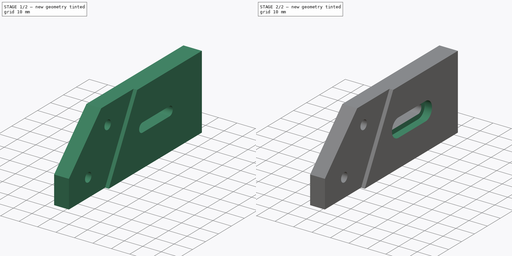
[diagram: build sequence overview — one tinted view per stage of 2, left to right]
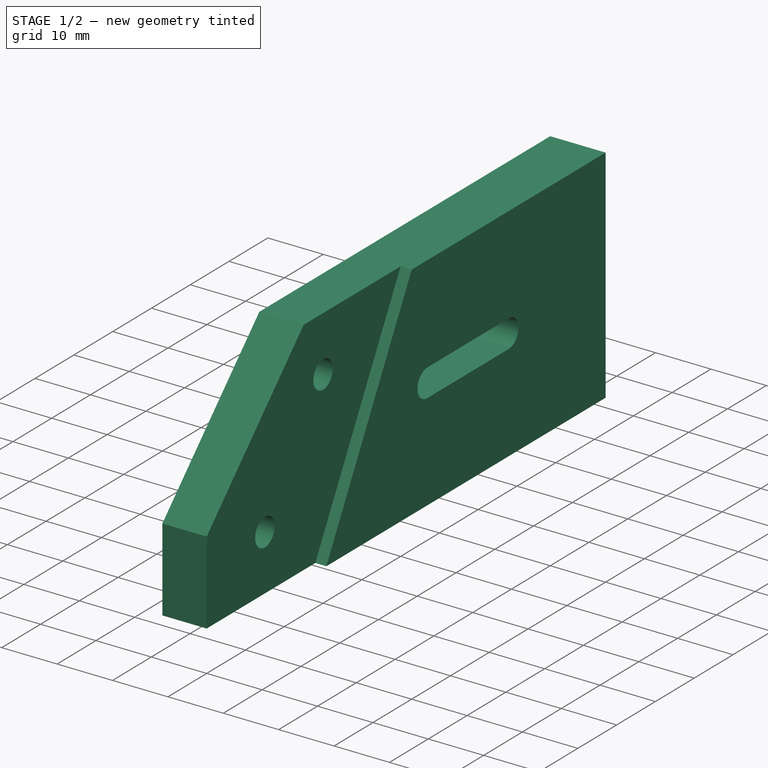
[diagram: stage 1 of 2 — iso view after this stage's code; geometry added in this stage tinted green]
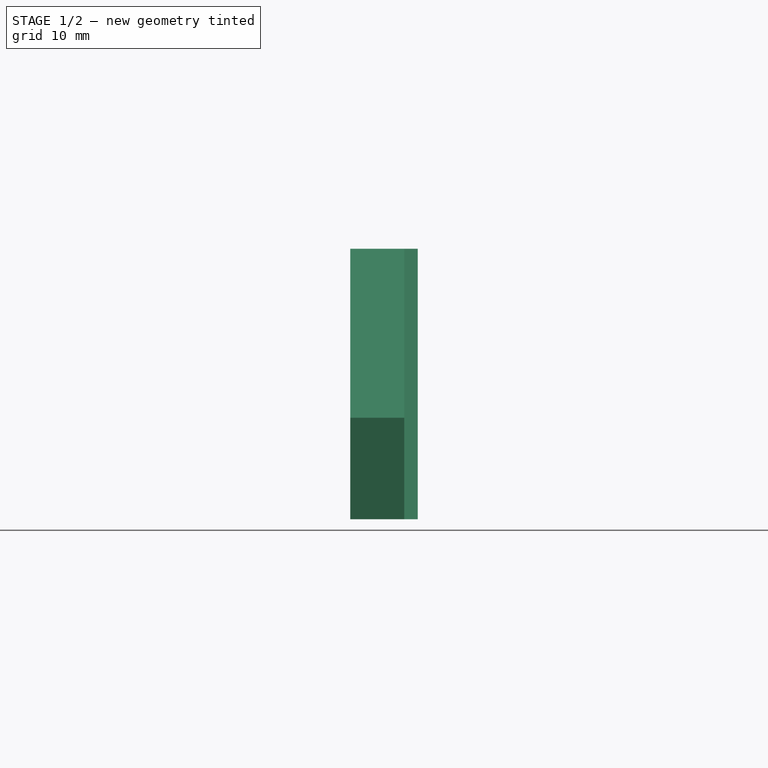
[diagram: stage 1 of 2 — front view after this stage's code; geometry added in this stage tinted green]
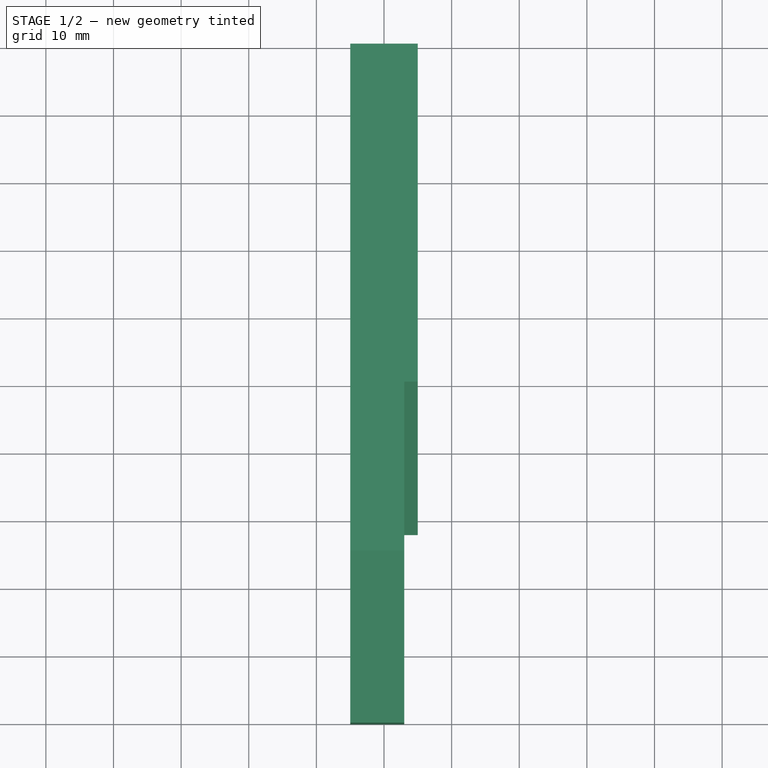
[diagram: stage 1 of 2 — top view after this stage's code; geometry added in this stage tinted green]
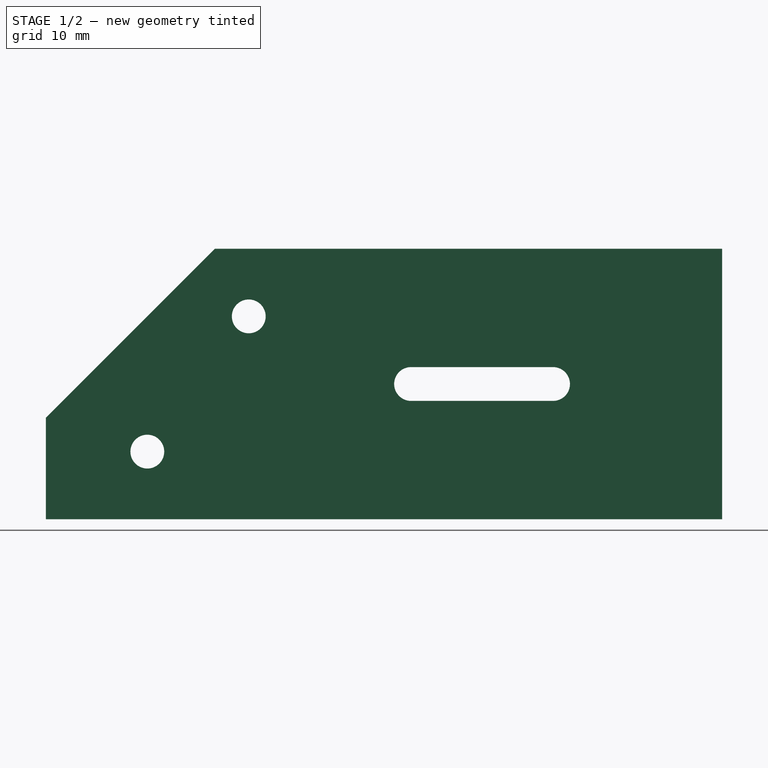
[diagram: stage 1 of 2 — right view after this stage's code; geometry added in this stage tinted green]
FCSTD DOCUMENT  (FreeCAD 0.18R16146 (Git))
Label: LeftMirrorMount
License: All rights reserved
LicenseURL: http://en.wikipedia.org/wiki/All_rights_reserved
objects: Sketcher::SketchObject×4, PartDesign::Pocket×2, PartDesign::Pad×1, PartDesign::Plane×1, PartDesign::Body×1
note: 12 computed .brp shape members not serialized (recipe doc carries the construction recipe); baked Part::Feature solids carry a one-line shape summary decoded from their .brp

FEATURE [Sketcher::SketchObject] Sketch  label="Master"
  MapMode = 5
  Placement = pos=(0,0,0) rot=(0.57735,0.57735,0.57735;2.0944rad)
  Support = -> [YZ_Plane]
  sketch-geometry (24):
    g0: LineSegment StartX=-25 StartY=20 StartZ=0 EndX=-50 EndY=-5 EndZ=0
    g1: LineSegment StartX=-50 StartY=-5 StartZ=0 EndX=-50 EndY=-20 EndZ=0
    g2: LineSegment StartX=-50 StartY=-20 StartZ=0 EndX=50 EndY=-20 EndZ=0
    g3: LineSegment StartX=50 StartY=-20 StartZ=0 EndX=50 EndY=20 EndZ=0
    g4: LineSegment StartX=50 StartY=20 StartZ=0 EndX=-25 EndY=20 EndZ=0
    g5: Circle CenterX=-35 CenterY=-10 CenterZ=0 NormalX=0 NormalY=0 NormalZ=1 AngleXU=0 Radius=2.5
    g6: Circle CenterX=-20 CenterY=10 CenterZ=0 NormalX=0 NormalY=0 NormalZ=1 AngleXU=0 Radius=2.5
    g7: LineSegment StartX=83.1533 StartY=5.68012 StartZ=0 EndX=83.1533 EndY=-4.31988 EndZ=0
    g8: LineSegment StartX=4 StartY=2.5 StartZ=0 EndX=25 EndY=2.5 EndZ=0
    g9: LineSegment StartX=4 StartY=-2.5 StartZ=0 EndX=25 EndY=-2.5 EndZ=0
    g10: ArcOfCircle CenterX=25 CenterY=-1e-16 CenterZ=0 NormalX=0 NormalY=0 NormalZ=1 AngleXU=0 Radius=2.5 StartAngle=4.71239 EndAngle=7.85398
    g11: ArcOfCircle CenterX=4 CenterY=0 CenterZ=0 NormalX=0 NormalY=0 NormalZ=1 AngleXU=0 Radius=2.5 StartAngle=1.5708 EndAngle=4.71239
    g12: LineSegment [constr] StartX=1.5 StartY=2.5 StartZ=0 EndX=27.5 EndY=2.5 EndZ=0
    g13: LineSegment [constr] StartX=27.5 StartY=2.5 StartZ=0 EndX=27.5 EndY=-2.5 EndZ=0
    g14: LineSegment [constr] StartX=27.5 StartY=-2.5 StartZ=0 EndX=1.5 EndY=-2.5 EndZ=0
    g15: LineSegment [constr] StartX=1.5 StartY=-2.5 StartZ=0 EndX=1.5 EndY=2.5 EndZ=0
    g16: LineSegment StartX=4 StartY=5 StartZ=0 EndX=25 EndY=5 EndZ=0
    g17: LineSegment StartX=4 StartY=-5 StartZ=0 EndX=25 EndY=-5 EndZ=0
    g18: ArcOfCircle CenterX=25 CenterY=-1e-16 CenterZ=0 NormalX=0 NormalY=0 NormalZ=1 AngleXU=0 Radius=5 StartAngle=4.71239 EndAngle=7.85398
    g19: ArcOfCircle CenterX=4 CenterY=0 CenterZ=0 NormalX=0 NormalY=0 NormalZ=1 AngleXU=0 Radius=5 StartAngle=1.5708 EndAngle=4.71239
    g20: LineSegment [constr] StartX=-1 StartY=5 StartZ=0 EndX=30 EndY=5 EndZ=0
    g21: LineSegment [constr] StartX=30 StartY=5 StartZ=0 EndX=30 EndY=-5 EndZ=0
    g22: LineSegment [constr] StartX=30 StartY=-5 StartZ=0 EndX=-1 EndY=-5 EndZ=0
    g23: LineSegment [constr] StartX=-1 StartY=-5 StartZ=0 EndX=-1 EndY=5 EndZ=0
  constraints (71):
    c: Coincident(g0,g1)
    c: Vertical(g1)
    c: Coincident(g1,g2)
    c: Coincident(g2,g3)
    c: Coincident(g3,g4)
    c: Horizontal(g4)
    c: Coincident(g4,g0)
    c: Symmetric(g3,g2,g-1)
    c: Symmetric(g1,g2,g-2)
    c: Angle(g1,g0) = 2.35619
    c: DistanceY(g3,g3) = 40
    c: DistanceX(g2,g2) = 100
    c: DistanceY(g1,g1) = 15
    c: DistanceX(g1,g5) = 15
    c: Diameter(g5) = 5
    c: DistanceY(g1,g5) = 10
    c: Equal(g6,g5)
    c: DistanceY(g6,g0) = 10
    c: DistanceX(g0,g6) = 5
    c: Vertical(g7)
    c: DistanceY(g7,g7) = 10  'Width'
    c: Horizontal(g8)
    c: Horizontal(g9)
    c: Coincident(g10,g8)
    c: Coincident(g9,g10)
    c: Vertical(g10,g8)
    c: Vertical(g8,g9)
    c: Coincident(g11,g8)
    c: Coincident(g11,g9)
    c: Equal(g9,g8)
    c: Vertical(g11,g8)
    c: Coincident(g12,g13)
    c: Coincident(g13,g14)
    c: Coincident(g14,g15)
    c: Coincident(g15,g12)
    c: Horizontal(g12)
    c: Horizontal(g14)
    c: Vertical(g13)
    c: Vertical(g15)
    c: Tangent(g15,g11)
    c: Tangent(g10,g13)
    c: PointOnObject(g8,g12)
    c: PointOnObject(g9,g14)
    c: DistanceY(g15,g15) = 5
    c: DistanceX(g14,g13) = 26
    c: Horizontal(g16)
    c: Horizontal(g17)
    c: Coincident(g18,g16)
    c: Coincident(g18,g17)
    c: Vertical(g17,g10)
    c: Coincident(g19,g16)
    c: Coincident(g19,g17)
    c: Vertical(g17,g11)
    c: Vertical(g11,g16)
    c: Coincident(g19,g11)
    c: Coincident(g18,g10)
    c: Coincident(g20,g21)
    c: Coincident(g21,g22)
    c: Coincident(g22,g23)
    c: Coincident(g23,g20)
    c: Horizontal(g20)
    c: Horizontal(g22)
    c: Vertical(g21)
    c: Vertical(g23)
    c: PointOnObject(g16,g20)
    c: PointOnObject(g17,g22)
    c: Tangent(g23,g19)
    c: Tangent(g18,g21)
    c: DistanceY(g21,g21) = 10
    c: PointOnObject(g11,g-1)
    c: DistanceX(g21,g2) = 20
FEATURE [Sketcher::SketchObject] Sketch001
  MapMode = 5
  Placement = pos=(0,0,0) rot=(0.57735,0.57735,0.57735;2.0944rad)
  Support = -> [YZ_Plane]
  expr: Constraints[17] = Sketch.Constraints[17]
  expr: Constraints[53] = Sketch.Constraints[68]
  expr: Constraints[55] = Sketch.Constraints[70]
  expr: Constraints[43] = Sketch.Constraints[43]
  expr: Constraints[9] = Sketch.Constraints[9]
  expr: Constraints.Width = Sketch.Constraints[20]
  expr: Constraints[14] = Sketch.Constraints[14]
  expr: Constraints[13] = Sketch.Constraints[13]
  expr: Constraints[11] = Sketch.Constraints[11]
  expr: Constraints[18] = Sketch.Constraints[18]
  expr: Constraints[10] = Sketch.Constraints[10]
  expr: Constraints[44] = Sketch.Constraints[44]
  expr: Constraints[15] = Sketch.Constraints[15]
  expr: Constraints[12] = Sketch.Constraints[12]
  sketch-geometry (20):
    g0: LineSegment StartX=-25 StartY=20 StartZ=0 EndX=-50 EndY=-5 EndZ=0
    g1: LineSegment StartX=-50 StartY=-5 StartZ=0 EndX=-50 EndY=-20 EndZ=0
    g2: LineSegment StartX=-50 StartY=-20 StartZ=0 EndX=50 EndY=-20 EndZ=0
    g3: LineSegment StartX=50 StartY=-20 StartZ=0 EndX=50 EndY=20 EndZ=0
    g4: LineSegment StartX=50 StartY=20 StartZ=0 EndX=-25 EndY=20 EndZ=0
    g5: Circle CenterX=-35 CenterY=-10 CenterZ=0 NormalX=0 NormalY=0 NormalZ=1 AngleXU=0 Radius=2.5
    g6: Circle CenterX=-20 CenterY=10 CenterZ=0 NormalX=0 NormalY=0 NormalZ=1 AngleXU=0 Radius=2.5
    g7: LineSegment StartX=83.1533 StartY=5.68012 StartZ=0 EndX=83.1533 EndY=-4.31988 EndZ=0
    g8: LineSegment StartX=4 StartY=2.5 StartZ=0 EndX=25 EndY=2.5 EndZ=0
    g9: LineSegment StartX=4 StartY=-2.5 StartZ=0 EndX=25 EndY=-2.5 EndZ=0
    g10: ArcOfCircle CenterX=25 CenterY=-1e-16 CenterZ=0 NormalX=0 NormalY=0 NormalZ=1 AngleXU=0 Radius=2.5 StartAngle=4.71239 EndAngle=7.85398
    g11: ArcOfCircle CenterX=4 CenterY=0 CenterZ=0 NormalX=0 NormalY=0 NormalZ=1 AngleXU=0 Radius=2.5 StartAngle=1.5708 EndAngle=4.71239
    g12: LineSegment [constr] StartX=1.5 StartY=2.5 StartZ=0 EndX=27.5 EndY=2.5 EndZ=0
    g13: LineSegment [constr] StartX=27.5 StartY=2.5 StartZ=0 EndX=27.5 EndY=-2.5 EndZ=0
    g14: LineSegment [constr] StartX=27.5 StartY=-2.5 StartZ=0 EndX=1.5 EndY=-2.5 EndZ=0
    g15: LineSegment [constr] StartX=1.5 StartY=-2.5 StartZ=0 EndX=1.5 EndY=2.5 EndZ=0
    g16: LineSegment [constr] StartX=-1 StartY=5 StartZ=0 EndX=30 EndY=5 EndZ=0
    g17: LineSegment [constr] StartX=30 StartY=5 StartZ=0 EndX=30 EndY=-5 EndZ=0
    g18: LineSegment [constr] StartX=30 StartY=-5 StartZ=0 EndX=-1 EndY=-5 EndZ=0
    g19: LineSegment [constr] StartX=-1 StartY=-5 StartZ=0 EndX=-1 EndY=5 EndZ=0
  constraints (56):
    c: Coincident(g0,g1)
    c: Vertical(g1)
    c: Coincident(g1,g2)
    c: Coincident(g2,g3)
    c: Coincident(g3,g4)
    c: Horizontal(g4)
    c: Coincident(g4,g0)
    c: Symmetric(g3,g2,g-1)
    c: Symmetric(g1,g2,g-2)
    c: Angle(g1,g0) = 2.35619
    c: DistanceY(g3,g3) = 40
    c: DistanceX(g2,g2) = 100
    c: DistanceY(g1,g1) = 15
    c: DistanceX(g1,g5) = 15
    c: Diameter(g5) = 5
    c: DistanceY(g1,g5) = 10
    c: Equal(g6,g5)
    c: DistanceY(g6,g0) = 10
    c: DistanceX(g0,g6) = 5
    c: Vertical(g7)
    c: DistanceY(g7,g7) = 10  'Width'
    c: Horizontal(g8)
    c: Horizontal(g9)
    c: Coincident(g10,g8)
    c: Coincident(g9,g10)
    c: Vertical(g10,g8)
    c: Vertical(g8,g9)
    c: Coincident(g11,g8)
    c: Coincident(g11,g9)
    c: Equal(g9,g8)
    c: Vertical(g11,g8)
    c: Coincident(g12,g13)
    c: Coincident(g13,g14)
    c: Coincident(g14,g15)
    c: Coincident(g15,g12)
    c: Horizontal(g12)
    c: Horizontal(g14)
    c: Vertical(g13)
    c: Vertical(g15)
    c: Tangent(g15,g11)
    c: Tangent(g10,g13)
    c: PointOnObject(g8,g12)
    c: PointOnObject(g9,g14)
    c: DistanceY(g15,g15) = 5
    c: DistanceX(g14,g13) = 26
    c: Coincident(g16,g17)
    c: Coincident(g17,g18)
    c: Coincident(g18,g19)
    c: Coincident(g19,g16)
    c: Horizontal(g16)
    c: Horizontal(g18)
    c: Vertical(g17)
    c: Vertical(g19)
    c: DistanceY(g17,g17) = 10
    c: PointOnObject(g11,g-1)
    c: DistanceX(g17,g2) = 20
FEATURE [PartDesign::Pad] Pad
  Length = 10
  Length2 = 100
  Midplane = true
  Placement = pos=(0,0,0) rot=(0.57735,0.57735,0.57735;2.0944rad)
  Profile = -> Sketch001
  Type = 0
  expr: Length = Master.Constraints.Width
FEATURE [PartDesign::Plane] DatumPlane
  AttachmentOffset = pos=(0,0,5) rot=(0,0,1;0rad)
  Length = 147.749
  MapMode = 5
  Placement = pos=(5,-1.1e-15,1.1e-15) rot=(0.57735,0.57735,0.57735;2.0944rad)
  ResizeMode = 0
  Support = -> [YZ_Plane]
  Width = 54.5961
  expr: AttachmentOffset.Base.z = Master.Constraints.Width / 2
  expr: AttachmentOffset.Base.x = 0
FEATURE [Sketcher::SketchObject] Sketch002
  ExternalGeometry = -> [Sketch]
  MapMode = 5
  Placement = pos=(5,-1.1e-15,1.1e-15) rot=(0.57735,0.57735,0.57735;2.0944rad)
  Support = -> [DatumPlane]
  sketch-geometry (5):
    g0: LineSegment StartX=-25 StartY=20 StartZ=0 EndX=-50 EndY=-5 EndZ=0
    g1: LineSegment StartX=-50 StartY=-5 StartZ=0 EndX=-50 EndY=-20 EndZ=0
    g2: LineSegment StartX=-50 StartY=-20 StartZ=0 EndX=-22 EndY=-20 EndZ=0
    g3: LineSegment StartX=-22 StartY=-20 StartZ=0 EndX=7.1e-15 EndY=20 EndZ=0
    g4: LineSegment StartX=7.1e-15 StartY=20 StartZ=0 EndX=-25 EndY=20 EndZ=0
  constraints (12):
    c: Coincident(g0,g-5)
    c: Coincident(g0,g1)
    c: Coincident(g1,g-7)
    c: Coincident(g1,g2)
    c: PointOnObject(g2,g-7)
    c: Coincident(g2,g3)
    c: Coincident(g3,g4)
    c: Horizontal(g4)
    c: DistanceX(g3,g-6) = 50
    c: DistanceX(g2,g-7) = 72
    c: Coincident(g4,g0)
    c: Coincident(g0,g-4)
FEATURE [PartDesign::Pocket] Pocket
  BaseFeature = -> Pad
  Length = 2
  Length2 = 100
  Placement = pos=(0,0,0) rot=(0.57735,0.57735,0.57735;2.0944rad)
  Profile = -> Sketch002
  Type = 0
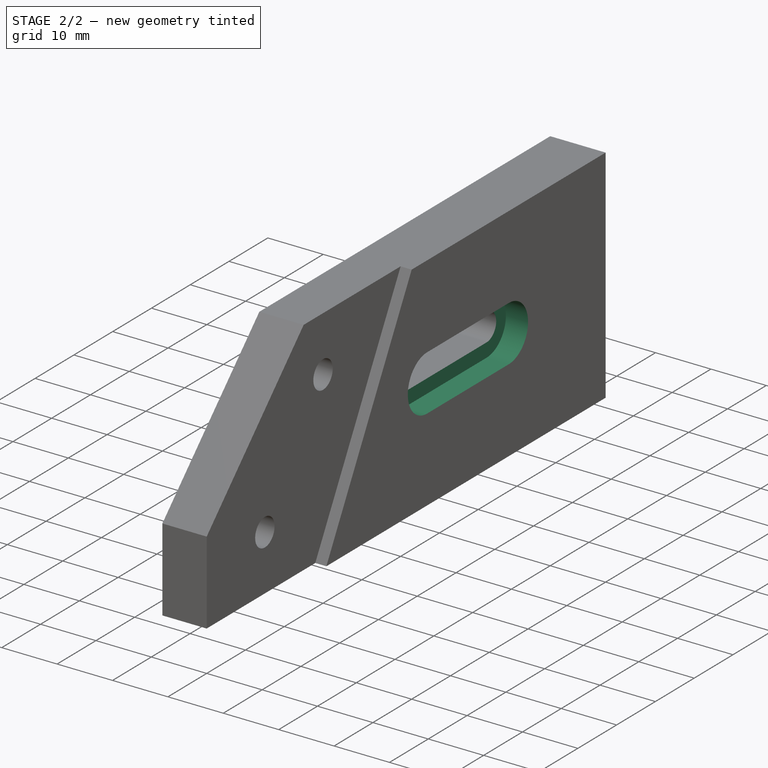
[diagram: stage 2 of 2 — iso view after this stage's code; geometry added in this stage tinted green]
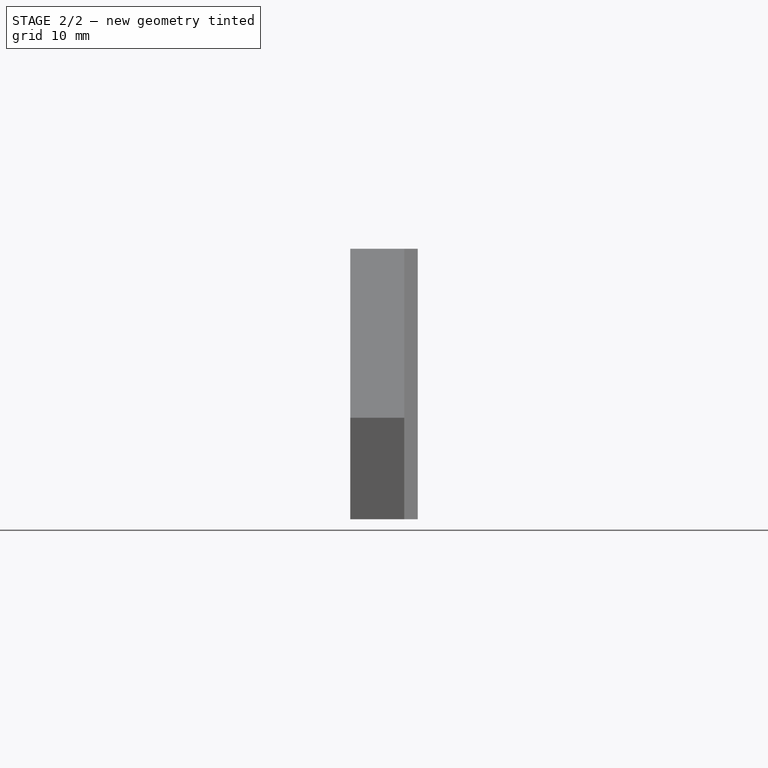
[diagram: stage 2 of 2 — front view after this stage's code; geometry added in this stage tinted green]
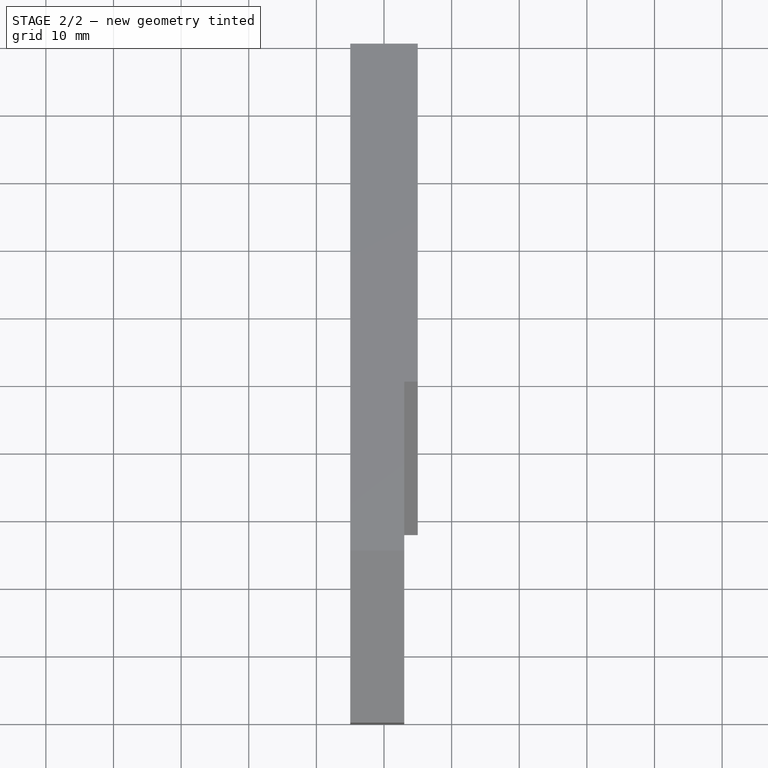
[diagram: stage 2 of 2 — top view after this stage's code; geometry added in this stage tinted green]
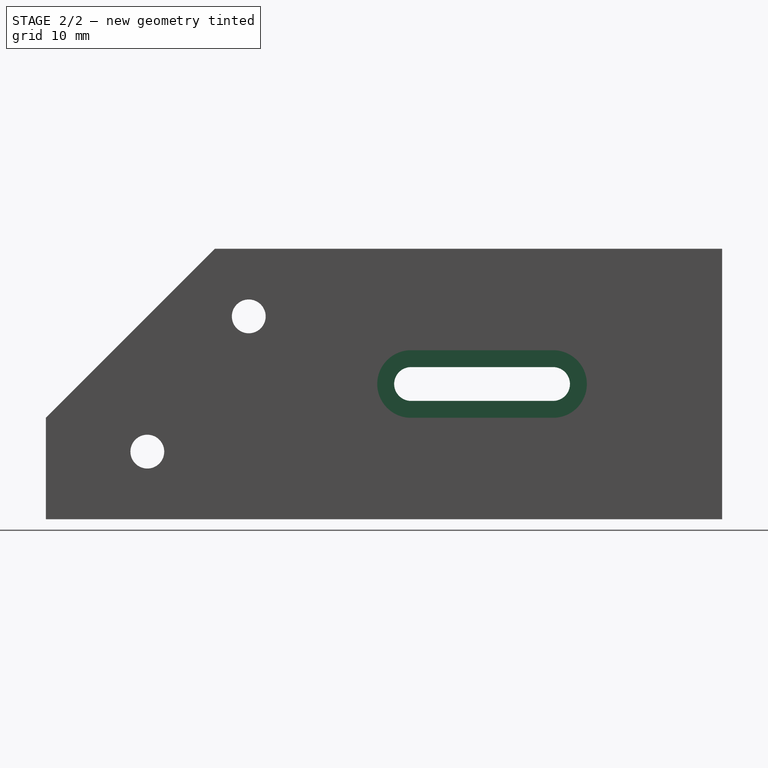
[diagram: stage 2 of 2 — right view after this stage's code; geometry added in this stage tinted green]
FEATURE [Sketcher::SketchObject] Sketch003
  ExternalGeometry = -> [Sketch]
  MapMode = 5
  Placement = pos=(5,-1.1e-15,1.1e-15) rot=(0.57735,0.57735,0.57735;2.0944rad)
  Support = -> [DatumPlane]
  sketch-geometry (4):
    g0: LineSegment StartX=4 StartY=5 StartZ=0 EndX=25 EndY=5 EndZ=0
    g1: LineSegment StartX=4 StartY=-5 StartZ=0 EndX=25 EndY=-5 EndZ=0
    g2: ArcOfCircle CenterX=25 CenterY=-6.2e-15 CenterZ=0 NormalX=0 NormalY=0 NormalZ=1 AngleXU=0 Radius=5 StartAngle=4.71239 EndAngle=7.85398
    g3: ArcOfCircle CenterX=4 CenterY=-1.4e-15 CenterZ=0 NormalX=0 NormalY=0 NormalZ=1 AngleXU=0 Radius=5 StartAngle=1.5708 EndAngle=4.71239
  constraints (10):
    c: Coincident(g0,g-5)
    c: Coincident(g0,g-6)
    c: Coincident(g1,g-5)
    c: Coincident(g1,g-6)
    c: Coincident(g2,g-6)
    c: Coincident(g2,g0)
    c: Coincident(g2,g1)
    c: Coincident(g3,g-5)
    c: Coincident(g3,g0)
    c: Coincident(g3,g1)
FEATURE [PartDesign::Pocket] Pocket001
  BaseFeature = -> Pocket
  Length = 4
  Length2 = 100
  Placement = pos=(0,0,0) rot=(0.57735,0.57735,0.57735;2.0944rad)
  Profile = -> Sketch003
  Type = 0
FEATURE [PartDesign::Body] Body
  Group = -> [Sketch,Sketch001,Pad,DatumPlane,Sketch002,Pocket,Sketch003,Pocket001]
  Origin = -> Origin
  Tip = -> Pocket001
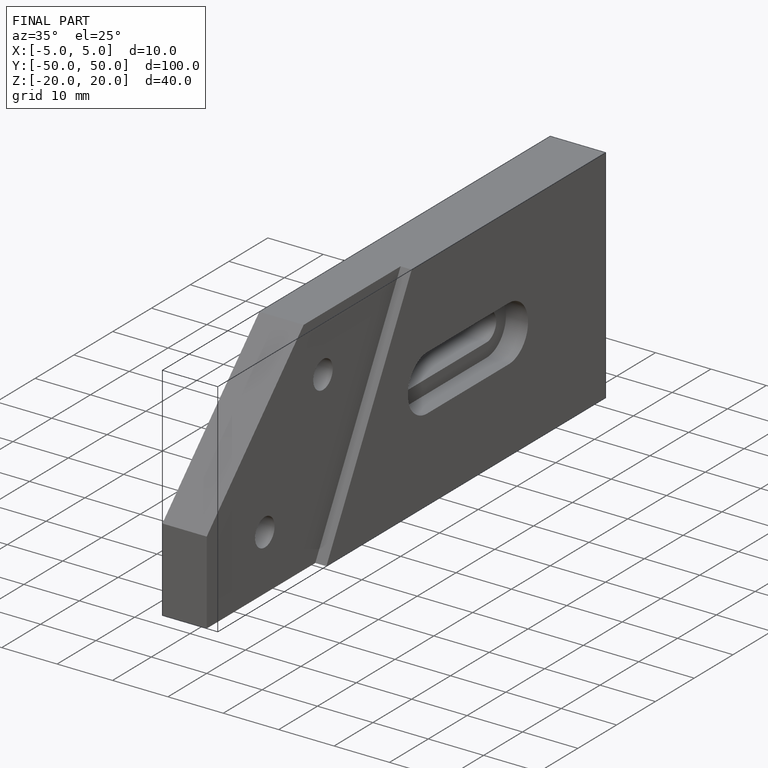
[diagram: finished part — iso view with bounding-box wireframe]
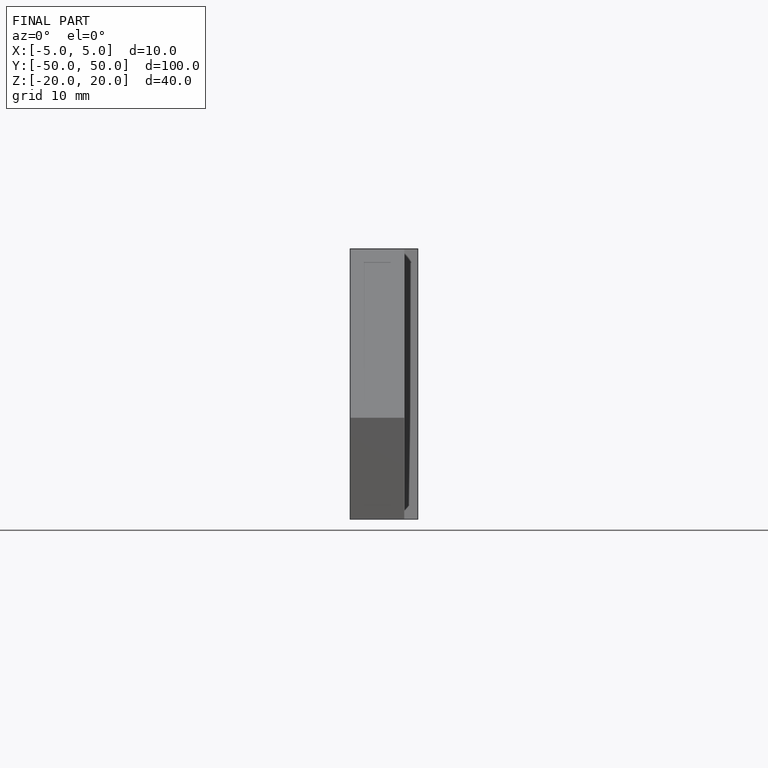
[diagram: finished part — front view with bounding-box wireframe]
